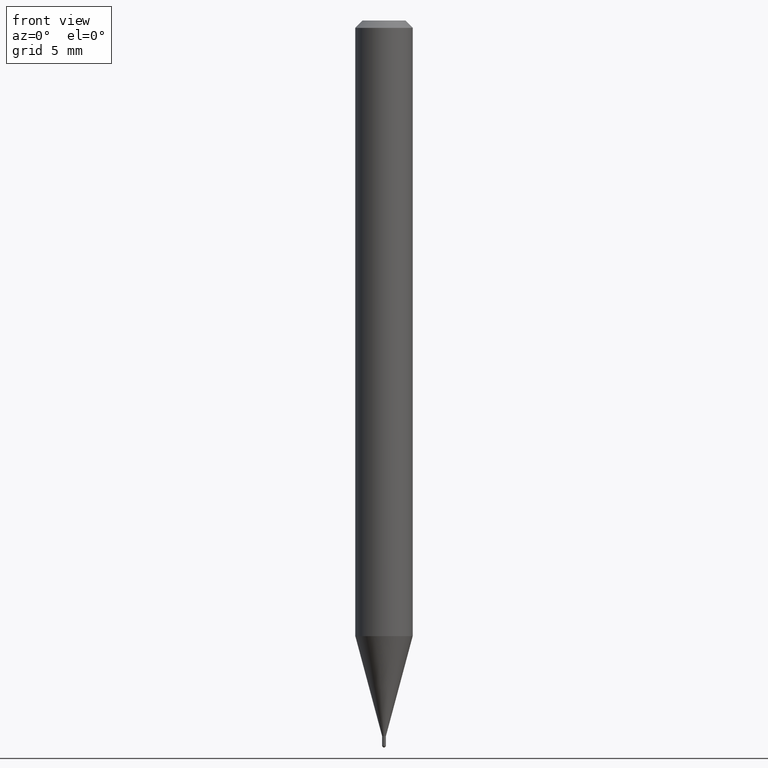
[diagram: clean part render]
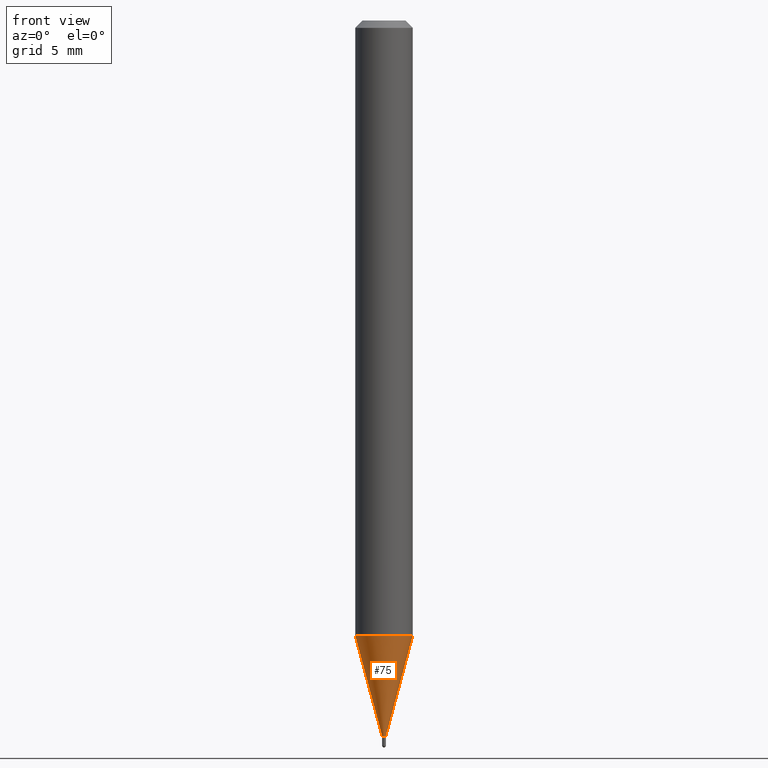
[diagram: same view with one face highlighted and labeled with its STEP entity id]
A machine part, front view. The second image highlights one B-rep face of the part: STEP entity #75.
In plain terms, the highlighted conical surface has half-angle 15 deg.
Its self-contained STEP definition (entity closure, byte-faithful):
#22 = DIRECTION ( 'NONE',  ( 1.000000000000000000, -6.982962677686379518E-15, 0.000000000000000000 ) ) ;
#42 = ORIENTED_EDGE ( 'NONE', *, *, #402, .F. ) ;
#44 = CARTESIAN_POINT ( 'NONE',  ( 3.600952817107613145E-29, -5.141206271446531536E-15, -1.472499999999999920 ) ) ;
#69 = CARTESIAN_POINT ( 'NONE',  ( 3.098076394908902159E-29, -4.423232016608262091E-15, -1.266864000502960996 ) ) ;
#70 = ORIENTED_EDGE ( 'NONE', *, *, #258, .F. ) ;
#75 = ADVANCED_FACE ( 'NONE', ( #271 ), #291, .T. ) ;
#87 = EDGE_CURVE ( 'NONE', #302, #209, #195, .T. ) ;
#103 = CIRCLE ( 'NONE', #155, 0.05904999999999999832 ) ;
#130 = ORIENTED_EDGE ( 'NONE', *, *, #87, .T. ) ;
#137 = DIRECTION ( 'NONE',  ( -2.445468806185136597E-29, 3.491481338843145583E-15, 1.000000000000000000 ) ) ;
#147 = VECTOR ( 'NONE', #460, 39.37007874015748854 ) ;
#155 = AXIS2_PLACEMENT_3D ( 'NONE', #69, #352, #187 ) ;
#165 = CARTESIAN_POINT ( 'NONE',  ( -0.003949999999999924925, -4.558398182262964662E-15, -1.472499999999999920 ) ) ;
#187 = DIRECTION ( 'NONE',  ( 1.000000000000000000, -6.982962677686273021E-15, 0.000000000000000000 ) ) ;
#195 = CIRCLE ( 'NONE', #220, 0.003949999999999924925 ) ;
#209 = VERTEX_POINT ( 'NONE', #446 ) ;
#218 = ORIENTED_EDGE ( 'NONE', *, *, #409, .T. ) ;
#220 = AXIS2_PLACEMENT_3D ( 'NONE', #495, #137, #309 ) ;
#226 = VERTEX_POINT ( 'NONE', #263 ) ;
#243 = AXIS2_PLACEMENT_3D ( 'NONE', #44, #293, #22 ) ;
#255 = DIRECTION ( 'NONE',  ( -0.2588190451025284000, 5.211531920934592063E-15, 0.9659258262890662028 ) ) ;
#258 = EDGE_CURVE ( 'NONE', #302, #283, #327, .T. ) ;
#261 = CARTESIAN_POINT ( 'NONE',  ( -0.05904999999999999832, -4.003656531141921809E-15, -1.266864000502960996 ) ) ;
#263 = CARTESIAN_POINT ( 'NONE',  ( 0.05904999999999999832, -4.835575962725635433E-15, -1.266864000502960996 ) ) ;
#271 = FACE_OUTER_BOUND ( 'NONE', #421, .T. ) ;
#277 = LINE ( 'NONE', #420, #147 ) ;
#283 = VERTEX_POINT ( 'NONE', #261 ) ;
#291 = CONICAL_SURFACE ( 'NONE', #243, 0.003949999999999924925, 0.2617993877991573459 ) ;
#292 = VECTOR ( 'NONE', #255, 39.37007874015748854 ) ;
#293 = DIRECTION ( 'NONE',  ( -2.445468806185136597E-29, 3.491481338843145583E-15, 1.000000000000000000 ) ) ;
#302 = VERTEX_POINT ( 'NONE', #165 ) ;
#309 = DIRECTION ( 'NONE',  ( 1.000000000000000000, -6.982962677686379518E-15, 0.000000000000000000 ) ) ;
#327 = LINE ( 'NONE', #508, #292 ) ;
#352 = DIRECTION ( 'NONE',  ( -2.445468806185136597E-29, 3.491481338843145583E-15, 1.000000000000000000 ) ) ;
#402 = EDGE_CURVE ( 'NONE', #283, #226, #103, .T. ) ;
#409 = EDGE_CURVE ( 'NONE', #209, #226, #277, .T. ) ;
#420 = CARTESIAN_POINT ( 'NONE',  ( 0.003949999999999924925, -5.168788974023392081E-15, -1.472499999999999920 ) ) ;
#421 = EDGE_LOOP ( 'NONE', ( #70, #130, #218, #42 ) ) ;
#446 = CARTESIAN_POINT ( 'NONE',  ( 0.003949999999999924925, -5.168788974023392081E-15, -1.472499999999999920 ) ) ;
#460 = DIRECTION ( 'NONE',  ( 0.2588190451025284000, 1.565188264969566156E-15, 0.9659258262890662028 ) ) ;
#495 = CARTESIAN_POINT ( 'NONE',  ( 3.600952817107613145E-29, -5.141206271446531536E-15, -1.472499999999999920 ) ) ;
#508 = CARTESIAN_POINT ( 'NONE',  ( -0.003949999999999924925, -5.113139833384007514E-15, -1.472499999999999920 ) ) ;